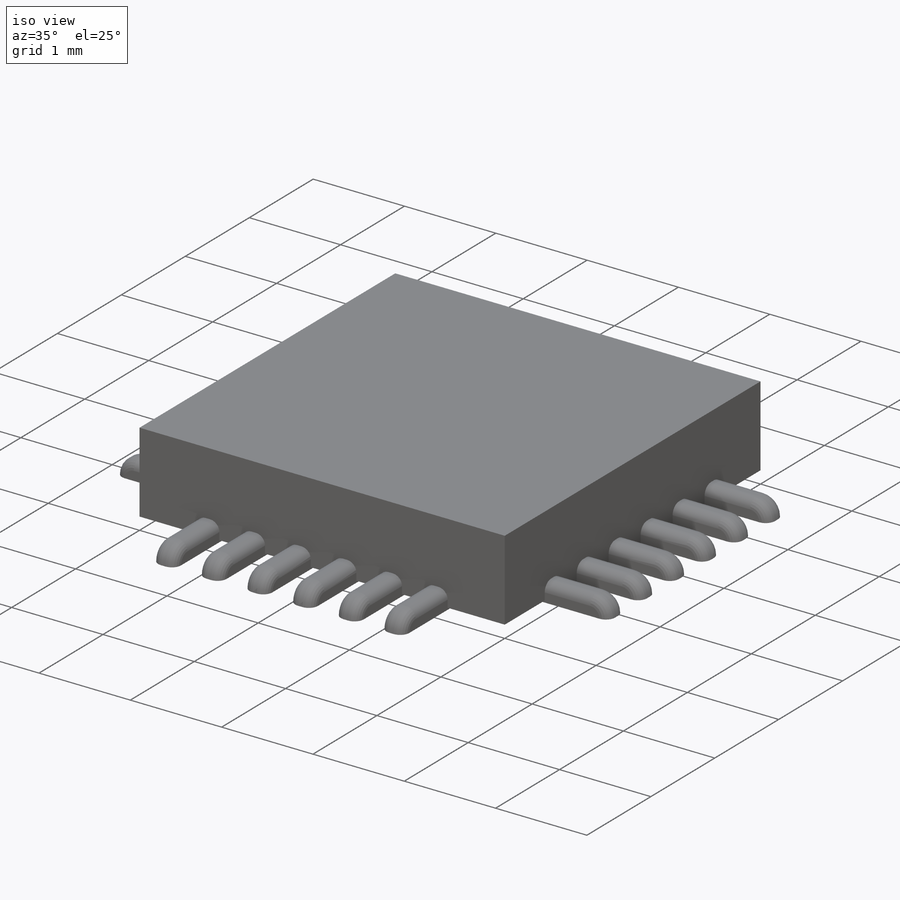
[diagram: iso view]
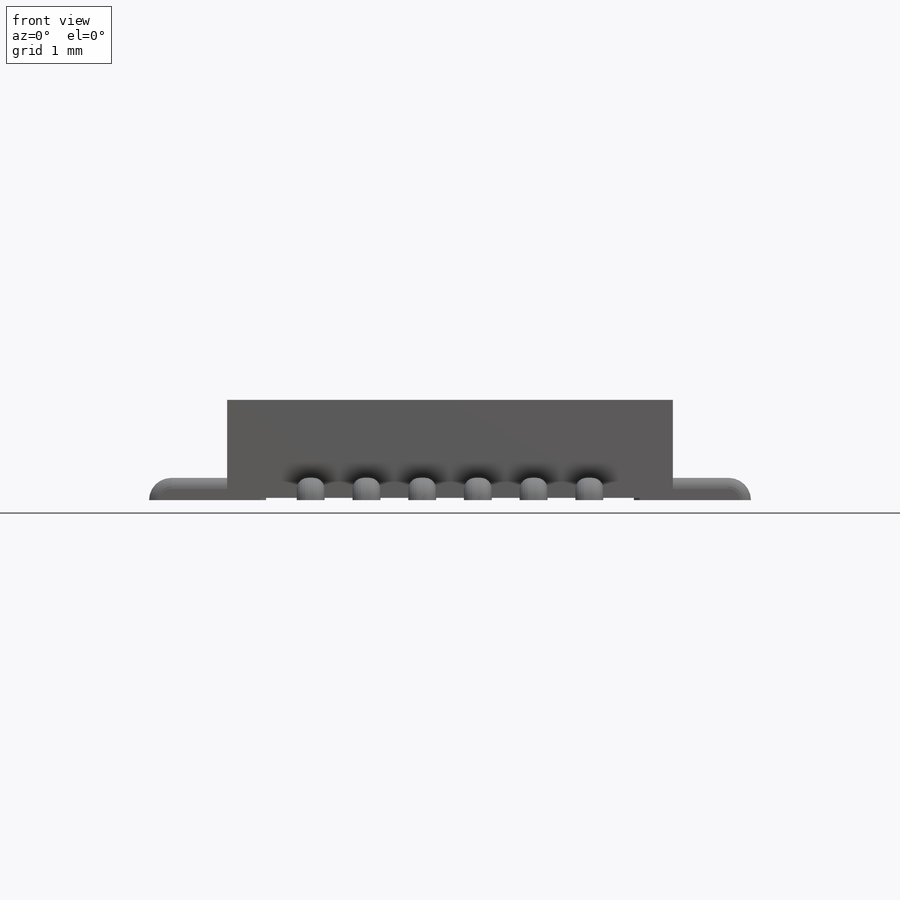
[diagram: front view]
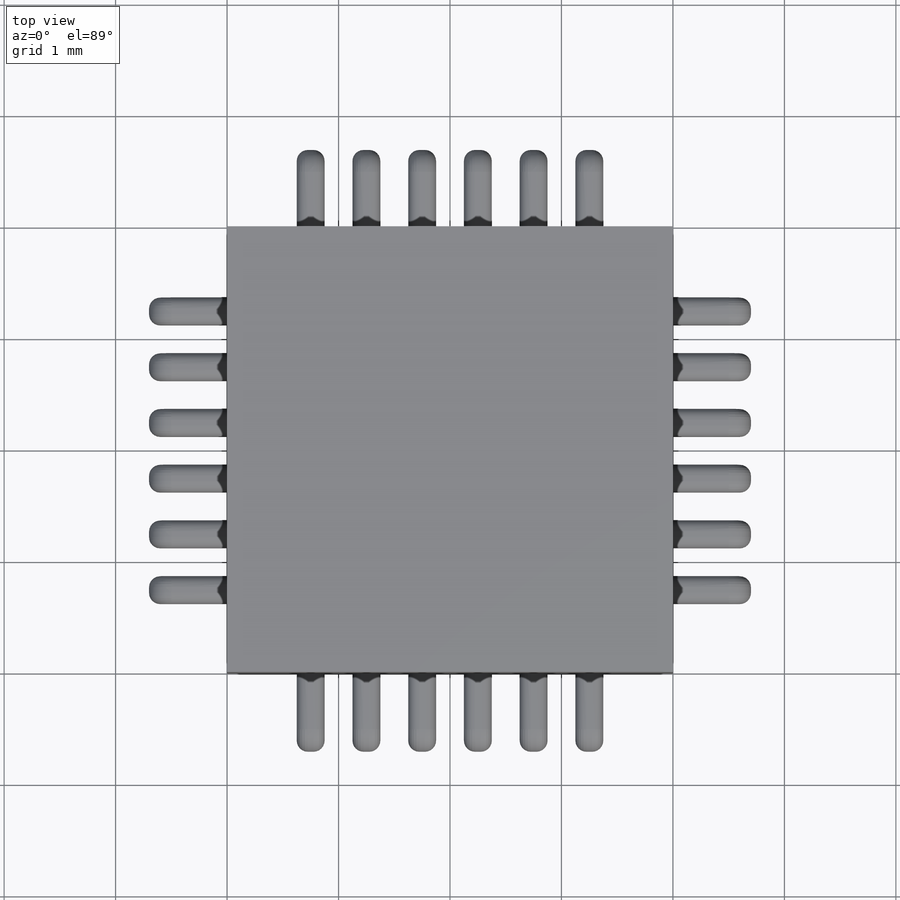
[diagram: top view]
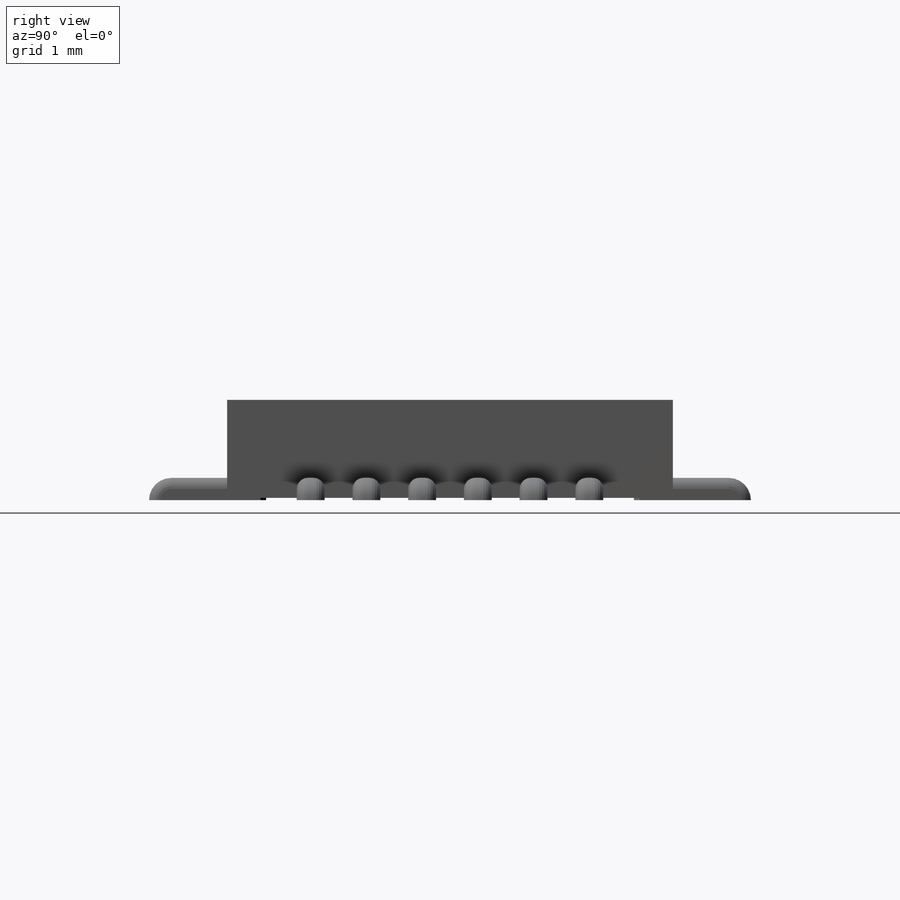
[diagram: right view]
SOLIDWORKS PART (.sldprt)
format: sldprt  version: not decoded by parser v0  size: 1,047,552 bytes
history: native  units: mm
features: sketch x4, fillet x3, extrude x2, cut_extrude x2, material x1, mirror x1, pattern_circular x1 (+12 scaffold rows collapsed)
feature tree (26):
  scaffold x12  (default folders/planes/origin — collapsed)
  material  "Material <not specified>"
  sketch  "Sketch1"  dims[D1=4.0mm]
  extrude  "Boss-Extrude1"  Depth=0.88mm
  sketch  "Sketch2"  dims[c1.D1=0.35mm c1.D2=0.25mm c1.D3=0.125mm c1.D4=0.25mm c1.D5=0.25mm c1.D6=0.25mm c1.D7=0.25mm c1.D8=0.05mm c1.D9=0.05mm c2.D3=2.0 c2.D8=4.0]
  cut_extrude  "Cut-Extrude1"  Depth=0.18mm
  sketch  "Sketch3"  dims[D1=0.25mm D2=0.7mm D3=2.0]
  extrude  "Boss-Extrude2"  Depth=0.2mm
  fillet  "Fillet1"  Radius=0.2mm
  mirror  "Mirror1"
  sketch  "Sketch4"  dims[D1=0.5mm]
  cut_extrude  "Cut-Extrude2"  Depth=0.2mm
  pattern_circular  "CirPattern2"  Count=4 Angle=360deg
  fillet  "Fillet2"  Radius=0.2mm
  fillet  "Fillet3"  Radius=0.1mm
decode coverage: 12 of 13 modeling features carry decoded parameters
note: suppression state not decoded; provenance and decode notes live in map.json
